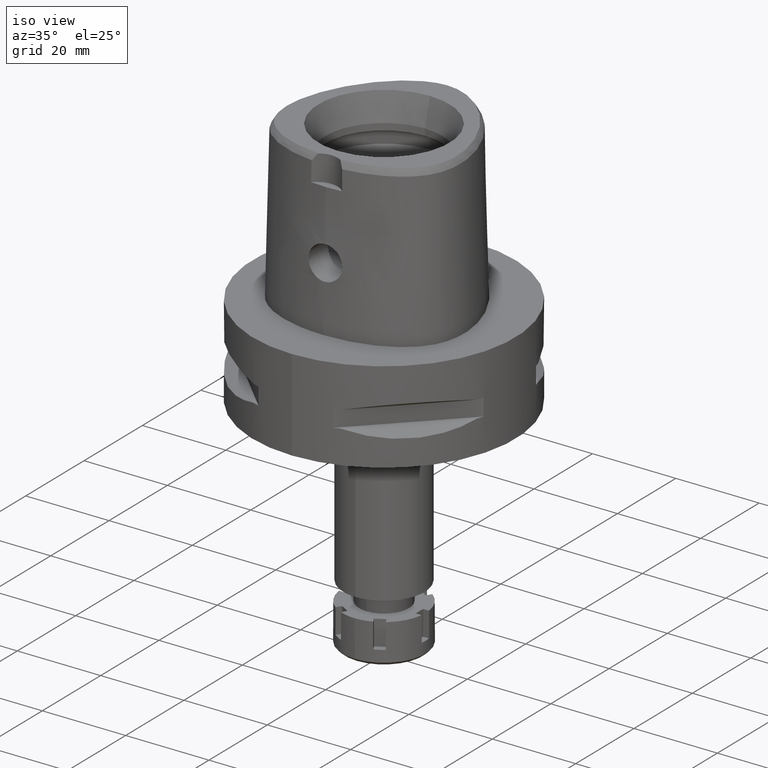
[diagram: clean part render]
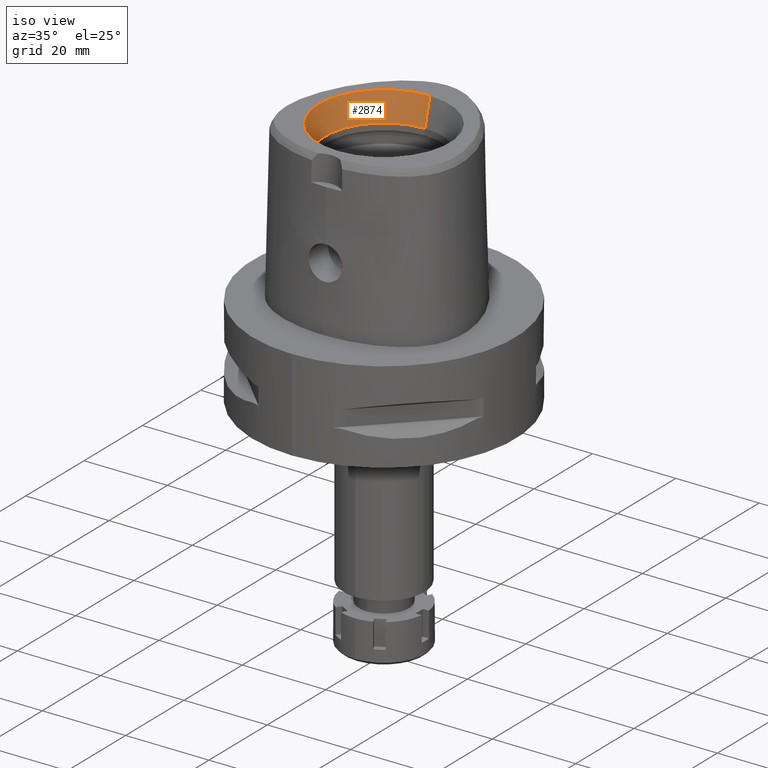
[diagram: same view with one face highlighted and labeled with its STEP entity id]
A machine part, iso view. The second image highlights one B-rep face of the part: STEP entity #2874.
In plain terms, the highlighted conical surface has half-angle 15 deg.
Its self-contained STEP definition (entity closure, byte-faithful):
#11 = AXIS2_PLACEMENT_3D ( 'NONE', #3038, #50, #1854 ) ;
#50 = DIRECTION ( 'NONE',  ( 0.0000000000000000000, 0.0000000000000000000, 1.000000000000000000 ) ) ;
#129 = VECTOR ( 'NONE', #4866, 1000.000000000000000 ) ;
#196 = VERTEX_POINT ( 'NONE', #2035 ) ;
#626 = CONICAL_SURFACE ( 'NONE', #4420, 14.85743741577999977, 0.2617993877991000029 ) ;
#870 = DIRECTION ( 'NONE',  ( 0.0000000000000000000, 0.0000000000000000000, 1.000000000000000000 ) ) ;
#923 = ORIENTED_EDGE ( 'NONE', *, *, #4991, .F. ) ;
#1281 = ORIENTED_EDGE ( 'NONE', *, *, #3041, .T. ) ;
#1329 = EDGE_LOOP ( 'NONE', ( #923, #5001, #4497, #1281 ) ) ;
#1587 = VERTEX_POINT ( 'NONE', #4393 ) ;
#1590 = EDGE_CURVE ( 'NONE', #4436, #2370, #1864, .T. ) ;
#1591 = CARTESIAN_POINT ( 'NONE',  ( 0.0000000000000000000, 14.00000000000000000, 31.60000000000000142 ) ) ;
#1699 = CIRCLE ( 'NONE', #11, 15.71487483155999776 ) ;
#1854 = DIRECTION ( 'NONE',  ( 0.0000000000000000000, 1.000000000000000000, 0.0000000000000000000 ) ) ;
#1864 = LINE ( 'NONE', #3186, #129 ) ;
#1998 = LINE ( 'NONE', #5331, #5408 ) ;
#2035 = CARTESIAN_POINT ( 'NONE',  ( 0.0000000000000000000, -15.71487483155999776, 38.00000000000000000 ) ) ;
#2067 = CIRCLE ( 'NONE', #3294, 14.00000000000000000 ) ;
#2370 = VERTEX_POINT ( 'NONE', #4308 ) ;
#2395 = CARTESIAN_POINT ( 'NONE',  ( 0.0000000000000000000, 0.0000000000000000000, 34.79999999999999716 ) ) ;
#2564 = DIRECTION ( 'NONE',  ( 0.0000000000000000000, 1.000000000000000000, 0.0000000000000000000 ) ) ;
#2874 = ADVANCED_FACE ( 'NONE', ( #4126 ), #626, .F. ) ;
#3038 = CARTESIAN_POINT ( 'NONE',  ( 0.0000000000000000000, 0.0000000000000000000, 38.00000000000000000 ) ) ;
#3041 = EDGE_CURVE ( 'NONE', #2370, #196, #1699, .T. ) ;
#3186 = CARTESIAN_POINT ( 'NONE',  ( 0.0000000000000000000, 14.00000000000000000, 31.60000000000000142 ) ) ;
#3294 = AXIS2_PLACEMENT_3D ( 'NONE', #3459, #870, #2564 ) ;
#3459 = CARTESIAN_POINT ( 'NONE',  ( 0.0000000000000000000, 0.0000000000000000000, 31.60000000000000142 ) ) ;
#3796 = DIRECTION ( 'NONE',  ( 0.0000000000000000000, 1.000000000000000000, 0.0000000000000000000 ) ) ;
#4066 = DIRECTION ( 'NONE',  ( 0.0000000000000000000, 0.0000000000000000000, 1.000000000000000000 ) ) ;
#4126 = FACE_OUTER_BOUND ( 'NONE', #1329, .T. ) ;
#4308 = CARTESIAN_POINT ( 'NONE',  ( 0.0000000000000000000, 15.71487483155999776, 38.00000000000000000 ) ) ;
#4393 = CARTESIAN_POINT ( 'NONE',  ( 0.0000000000000000000, -14.00000000000000000, 31.60000000000000142 ) ) ;
#4420 = AXIS2_PLACEMENT_3D ( 'NONE', #2395, #4066, #3796 ) ;
#4436 = VERTEX_POINT ( 'NONE', #1591 ) ;
#4497 = ORIENTED_EDGE ( 'NONE', *, *, #1590, .T. ) ;
#4559 = DIRECTION ( 'NONE',  ( 0.0000000000000000000, -0.2588190451025869088, 0.9659258262890505486 ) ) ;
#4866 = DIRECTION ( 'NONE',  ( 0.0000000000000000000, 0.2588190451025869088, 0.9659258262890505486 ) ) ;
#4991 = EDGE_CURVE ( 'NONE', #1587, #196, #1998, .T. ) ;
#5001 = ORIENTED_EDGE ( 'NONE', *, *, #5152, .F. ) ;
#5152 = EDGE_CURVE ( 'NONE', #4436, #1587, #2067, .T. ) ;
#5331 = CARTESIAN_POINT ( 'NONE',  ( 0.0000000000000000000, -14.00000000000000000, 31.60000000000000142 ) ) ;
#5408 = VECTOR ( 'NONE', #4559, 1000.000000000000000 ) ;